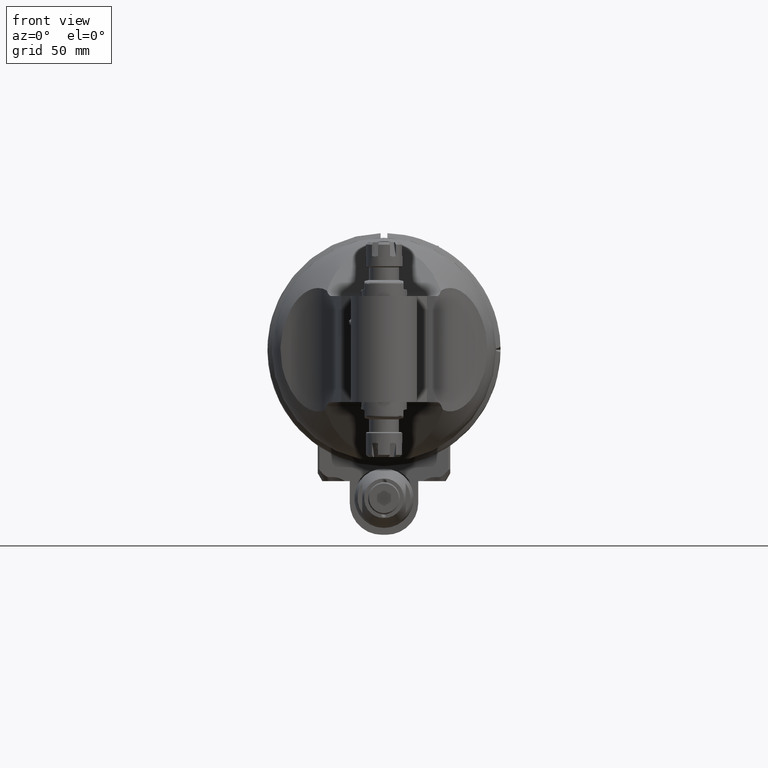
[diagram: clean part render]
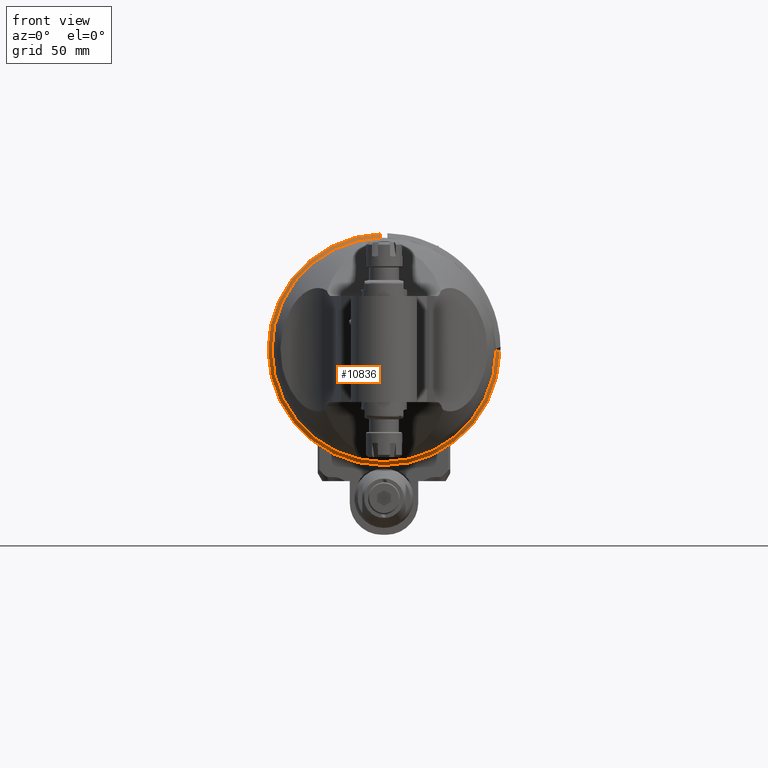
[diagram: same view with one face highlighted and labeled with its STEP entity id]
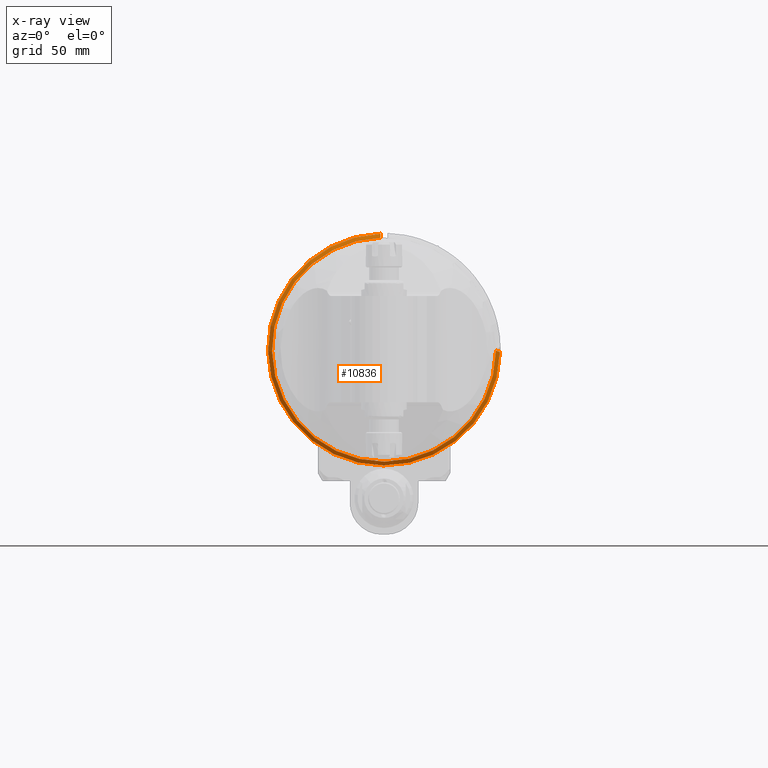
[diagram: x-ray of the same camera — body ghosted, the highlighted face saturated]
A machine part, front view. The second image highlights one B-rep face of the part: STEP entity #10836.
The next image is the same camera in x-ray: the body ghosted, the highlighted face saturated — about 0% of this face is hidden behind the body in this view.
In plain terms, the highlighted conical surface has half-angle 45 deg.
Its self-contained STEP definition (entity closure, byte-faithful):
#66=(
BOUNDED_CURVE()
B_SPLINE_CURVE(2,(#19077,#19078,#19079),.UNSPECIFIED.,.F.,.F.)
B_SPLINE_CURVE_WITH_KNOTS((3,3),(0.508727233088621,0.764831043681162),
 .UNSPECIFIED.)
CURVE()
GEOMETRIC_REPRESENTATION_ITEM()
RATIONAL_B_SPLINE_CURVE((1.00136985167552,1.00128834032644,1.00077759520502))
REPRESENTATION_ITEM('')
);
#67=(
BOUNDED_CURVE()
B_SPLINE_CURVE(2,(#19095,#19096,#19097),.UNSPECIFIED.,.F.,.F.)
B_SPLINE_CURVE_WITH_KNOTS((3,3),(-5.67826879781545,-5.35900055385126),
 .UNSPECIFIED.)
CURVE()
GEOMETRIC_REPRESENTATION_ITEM()
RATIONAL_B_SPLINE_CURVE((1.00308912931936,1.00557756147216,1.00777639680923))
REPRESENTATION_ITEM('')
);
#293=CONICAL_SURFACE('',#11785,49.85355339059,0.785398163397448);
#2731=FACE_OUTER_BOUND('',#3430,.T.);
#3430=EDGE_LOOP('',(#8261,#8262,#8263,#8264));
#4225=CIRCLE('',#11781,49.);
#4228=CIRCLE('',#11786,50.70710678119);
#4977=VERTEX_POINT('',#19074);
#4978=VERTEX_POINT('',#19076);
#4980=VERTEX_POINT('',#19085);
#4983=VERTEX_POINT('',#19094);
#6214=EDGE_CURVE('',#4978,#4977,#66,.T.);
#6219=EDGE_CURVE('',#4980,#4977,#4225,.T.);
#6222=EDGE_CURVE('',#4980,#4983,#67,.T.);
#6223=EDGE_CURVE('',#4978,#4983,#4228,.T.);
#8261=ORIENTED_EDGE('',*,*,#6214,.T.);
#8262=ORIENTED_EDGE('',*,*,#6219,.F.);
#8263=ORIENTED_EDGE('',*,*,#6222,.T.);
#8264=ORIENTED_EDGE('',*,*,#6223,.F.);
#10836=ADVANCED_FACE('',(#2731),#293,.T.);
#11781=AXIS2_PLACEMENT_3D('',#19087,#13718,#13719);
#11785=AXIS2_PLACEMENT_3D('',#19093,#13726,#13727);
#11786=AXIS2_PLACEMENT_3D('',#19098,#13728,#13729);
#13718=DIRECTION('center_axis',(0.,-1.,0.));
#13719=DIRECTION('ref_axis',(-0.0306122448979601,0.,0.999531335407904));
#13726=DIRECTION('center_axis',(0.,1.,0.));
#13727=DIRECTION('ref_axis',(0.,0.,-1.));
#13728=DIRECTION('center_axis',(0.,1.,0.));
#13729=DIRECTION('ref_axis',(0.,0.,-1.));
#19074=CARTESIAN_POINT('',(48.99810120193,0.,-0.4313682945262));
#19076=CARTESIAN_POINT('',(50.69626604881,1.707106781187,-1.048468801146));
#19077=CARTESIAN_POINT('Ctrl Pts',(50.6962660488093,1.70710678118947,-1.04846880114116));
#19078=CARTESIAN_POINT('Ctrl Pts',(49.8301452018414,0.834681228380691,-0.73459892132407));
#19079=CARTESIAN_POINT('Ctrl Pts',(48.9981012019286,2.8585443882932E-12,
-0.431368294522119));
#19085=CARTESIAN_POINT('',(-1.5,0.,48.97703543499));
#19087=CARTESIAN_POINT('Origin',(0.,-5.684341886081E-14,0.));
#19093=CARTESIAN_POINT('Origin',(0.,0.8535533905933,0.));
#19094=CARTESIAN_POINT('',(-1.50000000005422,1.70710677935587,50.6849156843801));
#19095=CARTESIAN_POINT('Ctrl Pts',(-1.5,3.75311690189205E-12,48.9770354349863));
#19096=CARTESIAN_POINT('Ctrl Pts',(-1.5,0.838926273321373,49.8163550676961));
#19097=CARTESIAN_POINT('Ctrl Pts',(-1.5,1.70710677935809,50.6849156843785));
#19098=CARTESIAN_POINT('Origin',(0.,1.707106781187,0.));